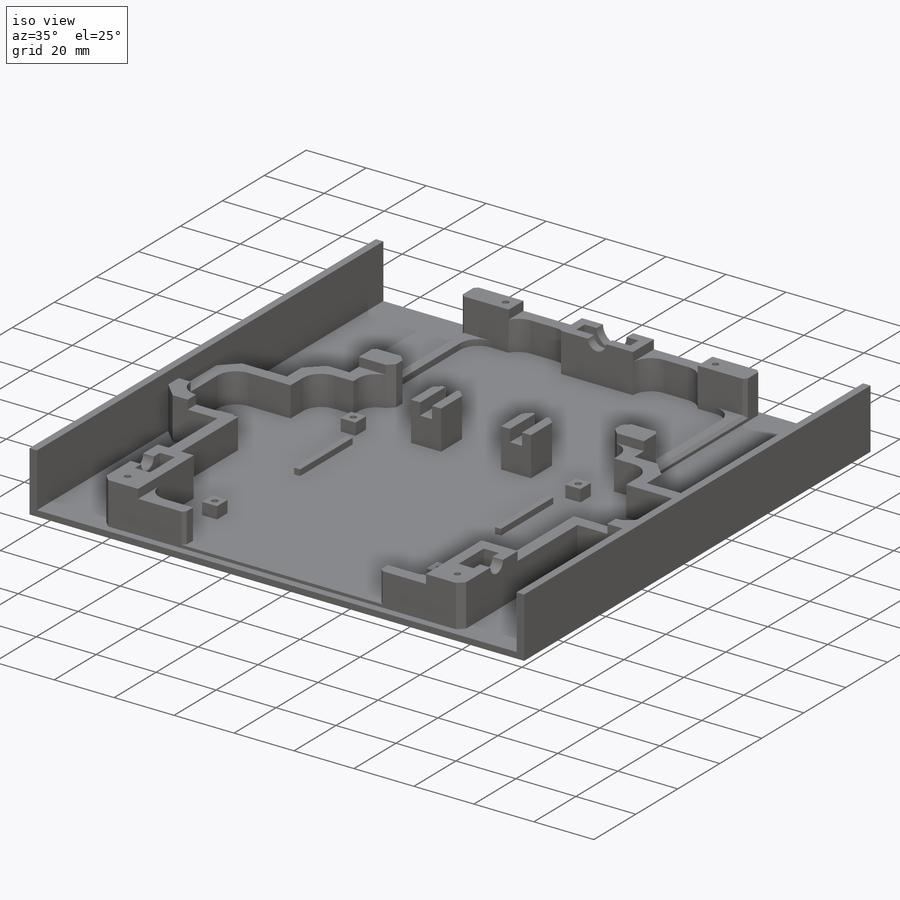
[diagram: iso view]
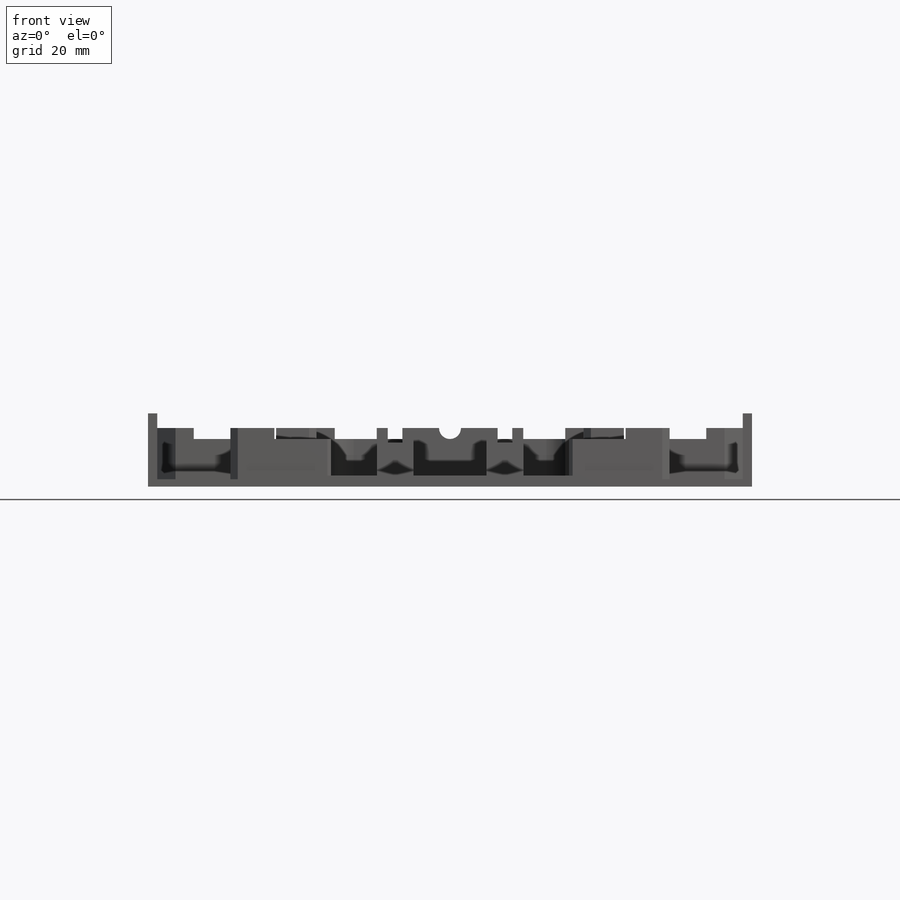
[diagram: front view]
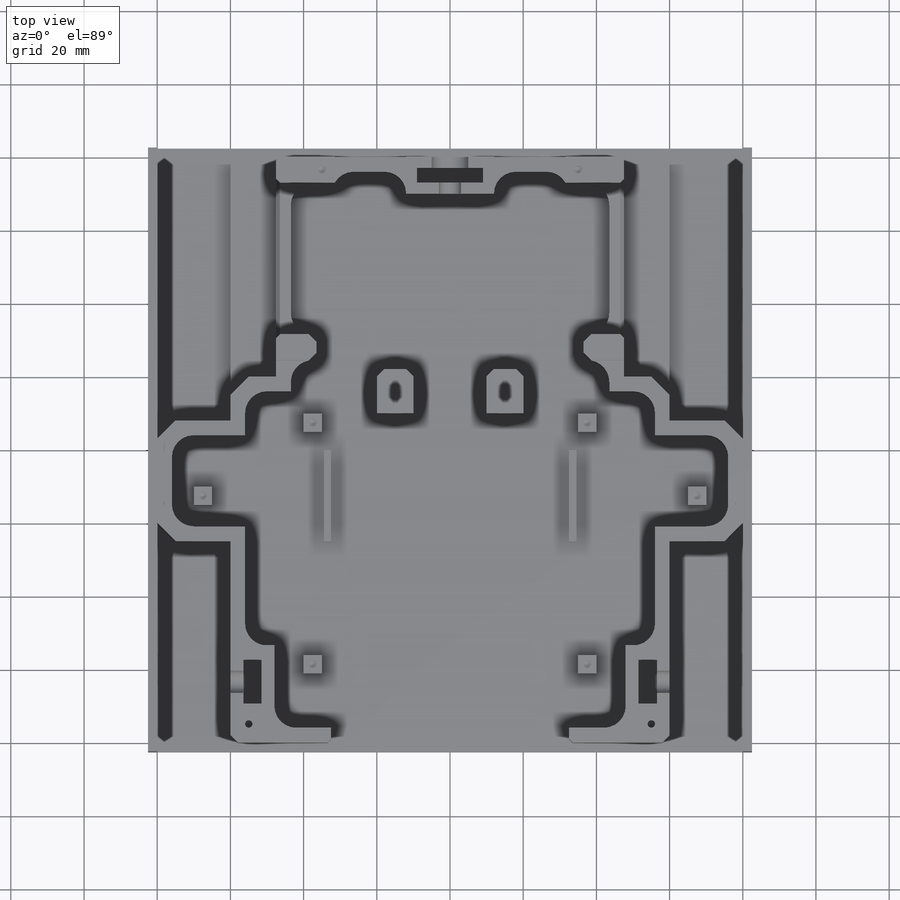
[diagram: top view]
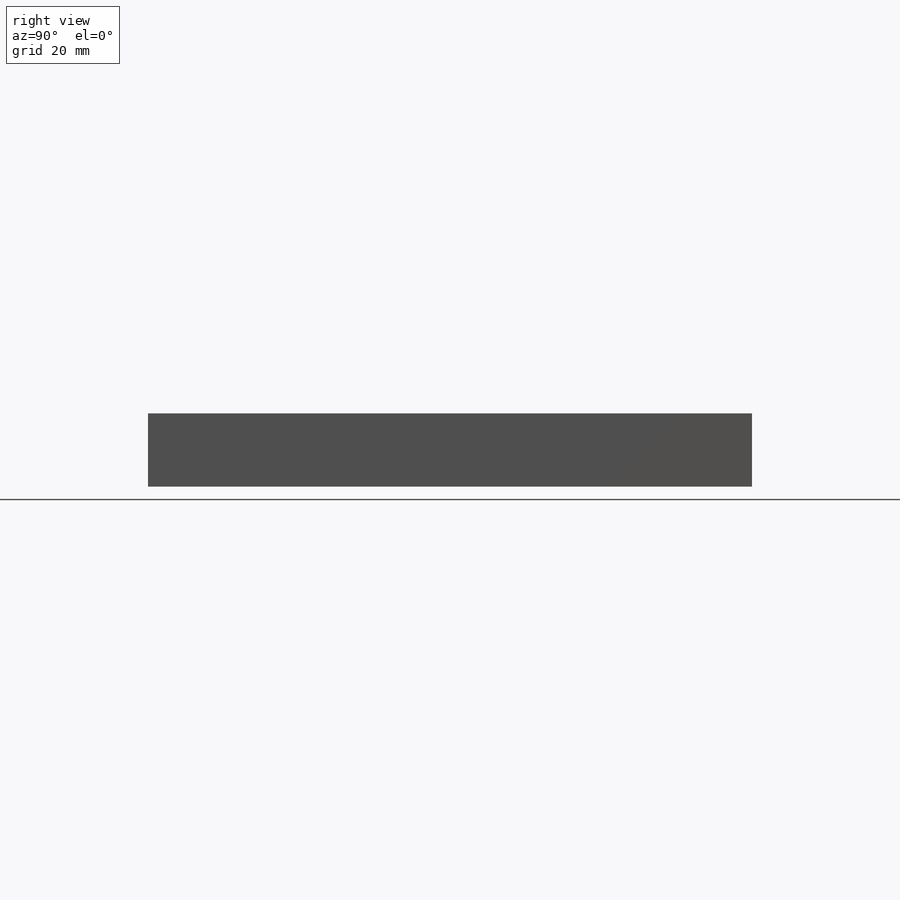
[diagram: right view]
SOLIDWORKS PART (.sldprt)
format: sldprt  version: not decoded by parser v0  size: 2,868,224 bytes
history: native  units: mm
features: sketch x19, extrude x9, cut_extrude x8, chamfer x4, mirror x3, material x1, plane x1, fillet x1, hole x1 (+15 scaffold rows collapsed)
feature tree (62):
  scaffold x15  (default folders/planes/origin — collapsed)
  material  "HDPE 500"
  sketch  "Sketch1"  dims[c1.D1=160.0mm c1.D2=95.0mm c1.D3=160.0mm c1.D4=45.0mm c1.D5=60.0mm c1.D6=55.0mm c2.D2=95.0mm c2.D6=80.0mm c2.D1=160.0mm c2.D7=120.0mm c2.D8=10.0mm c2.D9=12.0mm c2.D4=16.5mm c2.D10=35.0mm c2.D3=20.0mm c3.D8=45.0mm]
  extrude  "Extrude1"  Depth=3mm
  sketch  "Sketch2"  dims[c1.D5=18.0mm c1.D6=1.0mm c1.D3=15.0mm c1.D7=15.0mm c1.D8=1.0mm c1.D9=7.5mm c1.D10=1.0mm c2.D9=12.0mm c2.D11=25.57mm c2.D12=1.0mm c2.D13=4.0mm c2.D14=2.0mm c2.D15=41.5mm c2.D16=41.5mm c2.D6=7.0mm c2.D17=7.0mm c2.D3=4.0mm c3.D13=16.0mm c3.D18=11.0mm c3.D19=12.0mm c3.D20=10.0mm c3.D4=10.0mm c3.D7=25.0mm c3.D10=12.0mm c3.D12=10.0mm c3.D14=8.5mm c3.D5=26.5mm c3.D8=12.0mm c3.D11=4.0mm c4.D14=4.0mm c4.D16=4.0mm c4.D21=4.0mm c4.D7=19.0mm c4.D11=10.0mm c5.D7=20.0mm c5.D1=0.0mm c5.D2=0.0mm c5.D3=0.25mm c5.D4=0.25mm c6.D2=1.0mm]
  extrude  "Extrude2"  Depth=13mm
  sketch  "Sketch3"  dims[D1=7.0mm D2=5.0mm D3=41.5mm]
  cut_extrude  "Cut-Extrude1"  Depth=17mm
  sketch  "Sketch24"
  cut_extrude  "Cut-Extrude11"  Depth=10mm
  sketch  "Sketch5"  dims[D1=6.0mm D2=4.0mm D3=2.0mm D4=3.0mm D5=4.0mm D6=2.0mm D7=3.0mm]
  cut_extrude  "Cut-Extrude2"  Depth=14.377669mm
  plane  "Plane1"  Offset=3.5mm
  sketch  "Sketch6"  dims[D1=12.0mm D2=9.93mm]
  cut_extrude  "Cut-Extrude3"  Depth=5mm
  mirror  "Mirror1"
  sketch  "Sketch17"  dims[D1=4.0mm D2=4.0mm D3=3.0mm]
  cut_extrude  "Cut-Extrude8"  Depth=18mm
  sketch  "Sketch26"  dims[c1.D1=4.0mm c1.D2=4.0mm c1.D3=4.0mm c1.D4=4.0mm c1.D5=4.0mm c1.D6=4.0mm c1.D7=4.0mm c1.D8=65.0mm c1.D9=4.0mm c1.D10=4.0mm c2.D1=4.0mm]
  extrude  "Extrude3"  Depth=10mm
  fillet  "Fillet2"  Radius=6mm
  chamfer  "Chamfer1"  Distance=2mm Angle=45deg
  chamfer  "Chamfer2"  Distance=5mm Angle=45deg
  chamfer  "Chamfer3"  Distance=1mm Angle=45deg
  sketch  "Sketch28"
  extrude  "Extrude5"  [1 undecoded]
  sketch  "Sketch29"  dims[D1=10.0mm D2=2.0mm D3=25.0mm D4=65.0mm]
  extrude  "Extrude6"  Depth=2mm
  sketch  "Sketch35"  dims[D1=6.0mm]
  cut_extrude  "Cut-Extrude14"  Depth=5mm
  mirror  "Mirror2"
  sketch  "Sketch36"  dims[c1.D1=11.0mm c1.D2=10.0mm c1.D3=4.0mm c2.D1=5.5mm c3.D1=45.0deg c3.D4=~3.911236mm c4.D4=45.0deg c4.D5=6.0mm c4.D6=6.0mm]
  cut_extrude  "Cut-Extrude15"  Depth=4mm
  sketch  "Sketch37"  dims[c1.D1=5.0mm c1.D2=5.0mm c1.D3=5.0mm c1.D4=5.0mm c1.D5=5.0mm c1.D6=5.0mm c1.D7=6.0mm c1.D8=16.0mm c1.D9=6.0mm c1.D10=15.0mm c1.D11=61.0mm c2.D8=0.5mm c2.D10=6.0mm c2.D7=6.0mm c3.D10=6.0mm]
  extrude  "Extrude7"  Depth=4mm
  mirror  "Mirror3"
  sketch  "Sketch39"  dims[D1=3.0mm D2=3.0mm D3=18.0mm]
  cut_extrude  "Cut-Extrude16"  Depth=9mm
  sketch  "Sketch40"
  extrude  "Extrude8"  Depth=3mm
  chamfer  "Chamfer4"  Distance=1mm Angle=45deg
  sketch  "Sketch41"  dims[D1=2.5mm D2=2.5mm]
  extrude  "Extrude9"  Depth=2mm
  sketch  "Sketch42"  dims[c1.D3=9.0mm c1.D4=9.0mm c1.D5=15.0mm c1.D6=30.0mm c1.D1=3.0mm c1.D2=1.0mm c2.D1=0.0mm c2.D2=2.5mm c3.D1=2.5mm c3.D2=2.5mm]
  extrude  "Extrude10"  Depth=20mm
  hole  "Ø2.0 (2) Diameter Hole1"  Diameter=2mm Depth=2mm
  sketch  "3DSketch1"  dims[D1=12.5mm D2=3.5mm D3=3.5mm D4=12.5mm D5=5.0mm D6=5.0mm D7=5.0mm D8=5.0mm D9=2.5mm D10=2.5mm D11=2.5mm D12=2.5mm D13=2.5mm D14=2.5mm D15=2.5mm D16=2.5mm D17=2.5mm D18=2.5mm D19=2.5mm D20=2.5mm]
  sketch  "Sketch44"  dims[hole-wizard template sketch: 50 standard entries collapsed; hole parameters above]
decode coverage: 38 of 45 modeling features carry decoded parameters
note: ~ marks probable driven/reference dimensions
note: 1 parameter value undecoded
note: suppression state not decoded; provenance and decode notes live in map.json
